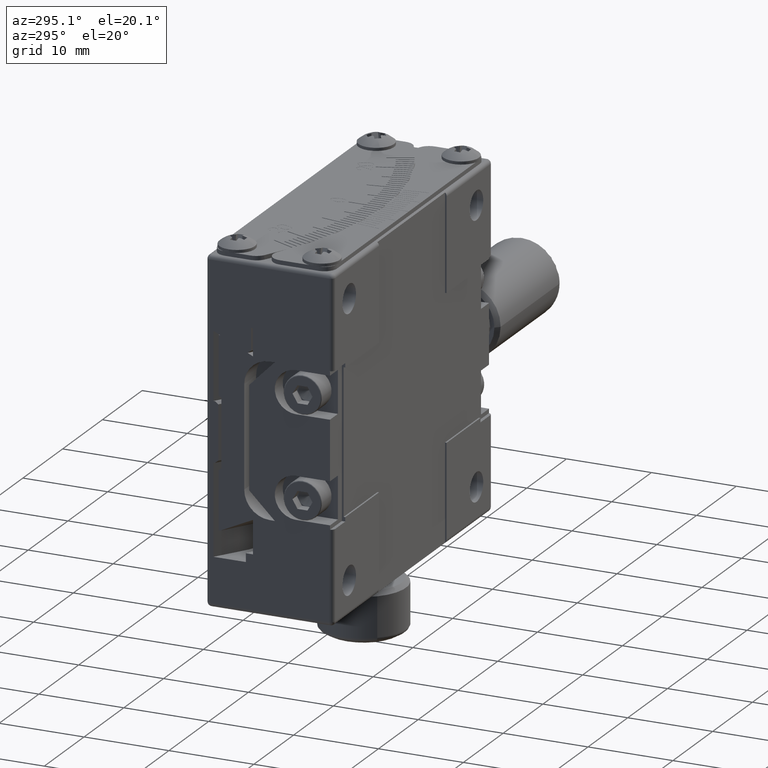
[diagram: clean part render]
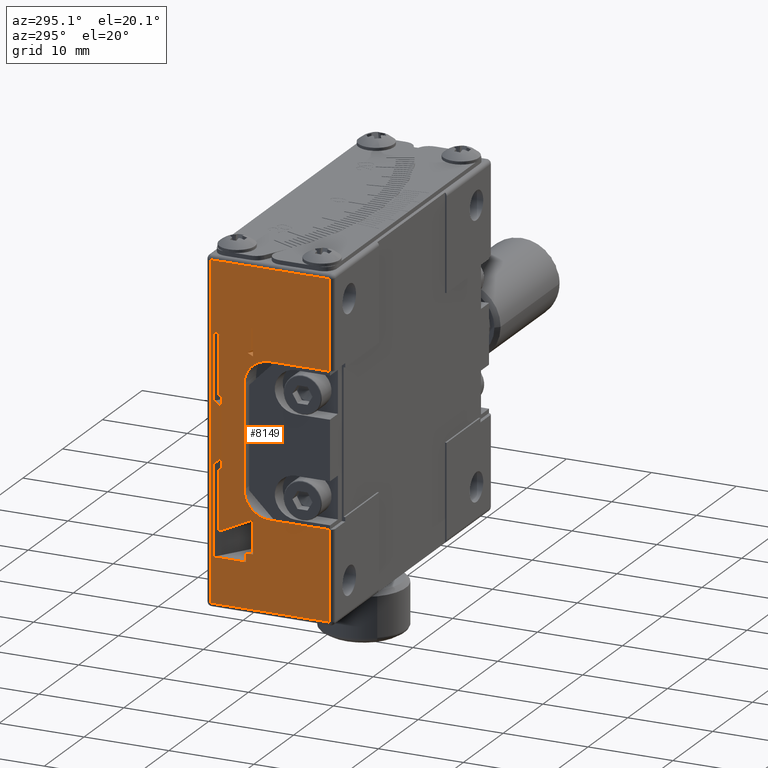
[diagram: same view with one face highlighted and labeled with its STEP entity id]
A machine part, auxiliary view. The second image highlights one B-rep face of the part: STEP entity #8149.
In plain terms, the highlighted planar face has unit normal (1, -0, 0).
Its self-contained STEP definition (entity closure, byte-faithful):
#68 = CARTESIAN_POINT ( 'NONE',  ( -20.00000000000000000, 15.00000000000000000, 3.500000000000000000 ) ) ;
#288 = DIRECTION ( 'NONE',  ( -1.254144814433826071E-15, -1.000000000000000000, 0.000000000000000000 ) ) ;
#293 = CIRCLE ( 'NONE', #1688, 3.000000000000000888 ) ;
#451 = DIRECTION ( 'NONE',  ( 1.254144814433826071E-15, 1.000000000000000000, 0.000000000000000000 ) ) ;
#580 = LINE ( 'NONE', #9838, #18164 ) ;
#593 = DIRECTION ( 'NONE',  ( 1.000000000000000000, 0.000000000000000000, 0.000000000000000000 ) ) ;
#776 = ORIENTED_EDGE ( 'NONE', *, *, #20348, .T. ) ;
#816 = VECTOR ( 'NONE', #10349, 1000.000000000000000 ) ;
#849 = LINE ( 'NONE', #25230, #18651 ) ;
#1038 = VERTEX_POINT ( 'NONE', #3870 ) ;
#1199 = VERTEX_POINT ( 'NONE', #1634 ) ;
#1237 = LINE ( 'NONE', #8130, #8167 ) ;
#1302 = CARTESIAN_POINT ( 'NONE',  ( -20.00000000000000000, 9.467230718455970973, 20.00000000000000000 ) ) ;
#1438 = EDGE_CURVE ( 'NONE', #13898, #17682, #580, .T. ) ;
#1448 = ORIENTED_EDGE ( 'NONE', *, *, #15769, .T. ) ;
#1468 = VECTOR ( 'NONE', #10566, 1000.000000000000000 ) ;
#1525 = DIRECTION ( 'NONE',  ( 1.000000000000000000, 0.000000000000000000, 0.000000000000000000 ) ) ;
#1633 = VECTOR ( 'NONE', #17537, 1000.000000000000000 ) ;
#1634 = CARTESIAN_POINT ( 'NONE',  ( -20.00000000000000000, 13.56285756742988013, 3.200000000000000178 ) ) ;
#1684 = VERTEX_POINT ( 'NONE', #4390 ) ;
#1688 = AXIS2_PLACEMENT_3D ( 'NONE', #13275, #593, #28997 ) ;
#1768 = ORIENTED_EDGE ( 'NONE', *, *, #17179, .T. ) ;
#1773 = CARTESIAN_POINT ( 'NONE',  ( -20.00000000000000000, 9.467230718455970973, 12.50000000000000000 ) ) ;
#1814 = DIRECTION ( 'NONE',  ( 1.254144814433826071E-15, 1.000000000000000000, 0.000000000000000000 ) ) ;
#1922 = VERTEX_POINT ( 'NONE', #11852 ) ;
#1960 = CARTESIAN_POINT ( 'NONE',  ( -20.00000000000000000, 13.94002110515052095, -3.500000000000000000 ) ) ;
#2102 = EDGE_CURVE ( 'NONE', #3546, #25067, #10137, .T. ) ;
#2133 = VECTOR ( 'NONE', #5649, 1000.000000000000000 ) ;
#2366 = VERTEX_POINT ( 'NONE', #16907 ) ;
#2391 = VERTEX_POINT ( 'NONE', #8687 ) ;
#2405 = VECTOR ( 'NONE', #12629, 1000.000000000000000 ) ;
#2555 = ORIENTED_EDGE ( 'NONE', *, *, #12958, .T. ) ;
#2684 = VERTEX_POINT ( 'NONE', #24826 ) ;
#2864 = CARTESIAN_POINT ( 'NONE',  ( -20.00000000000000355, 13.60359750041203064, 11.22326829616293864 ) ) ;
#2909 = LINE ( 'NONE', #27442, #27234 ) ;
#2923 = VERTEX_POINT ( 'NONE', #24796 ) ;
#2982 = LINE ( 'NONE', #15913, #26635 ) ;
#3009 = DIRECTION ( 'NONE',  ( 0.000000000000000000, -1.000000000000000000, 0.000000000000000000 ) ) ;
#3070 = ORIENTED_EDGE ( 'NONE', *, *, #4199, .T. ) ;
#3430 = EDGE_CURVE ( 'NONE', #26954, #7807, #21636, .T. ) ;
#3521 = B_SPLINE_CURVE_WITH_KNOTS ( 'NONE', 3,
 ( #12193, #5599, #14541, #25696 ),
 .UNSPECIFIED., .F., .F.,
 ( 4, 4 ),
 ( 0.000000000000000000, 0.1656765929956161287 ),
 .UNSPECIFIED. ) ;
#3546 = VERTEX_POINT ( 'NONE', #3740 ) ;
#3578 = VERTEX_POINT ( 'NONE', #19295 ) ;
#3619 = ORIENTED_EDGE ( 'NONE', *, *, #4912, .T. ) ;
#3653 = ORIENTED_EDGE ( 'NONE', *, *, #4686, .T. ) ;
#3687 = EDGE_CURVE ( 'NONE', #24534, #26146, #293, .T. ) ;
#3740 = CARTESIAN_POINT ( 'NONE',  ( -20.00000000000000000, 7.500000000000000000, -9.000000000000000000 ) ) ;
#3870 = CARTESIAN_POINT ( 'NONE',  ( -20.00000000000000000, 13.94002110515052095, -3.500000000000000000 ) ) ;
#3962 = CARTESIAN_POINT ( 'NONE',  ( -20.00000000000000000, 10.30757672401930058, -9.270170592217178651 ) ) ;
#4030 = VERTEX_POINT ( 'NONE', #19217 ) ;
#4199 = EDGE_CURVE ( 'NONE', #26146, #5664, #11130, .T. ) ;
#4390 = CARTESIAN_POINT ( 'NONE',  ( -20.00000000000000000, 14.50000000000000000, 19.50000000000000000 ) ) ;
#4532 = CARTESIAN_POINT ( 'NONE',  ( -20.00000000000000000, 9.467230718455960314, 9.281898384862241613 ) ) ;
#4537 = ORIENTED_EDGE ( 'NONE', *, *, #28343, .F. ) ;
#4686 = EDGE_CURVE ( 'NONE', #22340, #20641, #18424, .T. ) ;
#4749 = EDGE_CURVE ( 'NONE', #8413, #15895, #27972, .T. ) ;
#4755 = FACE_BOUND ( 'NONE', #9117, .T. ) ;
#4847 = DIRECTION ( 'NONE',  ( 3.081487911019574628E-32, 1.000000000000000000, -2.775557561562889810E-17 ) ) ;
#4870 = EDGE_CURVE ( 'NONE', #2366, #2684, #19876, .T. ) ;
#4912 = EDGE_CURVE ( 'NONE', #1038, #3578, #18406, .T. ) ;
#4919 = CARTESIAN_POINT ( 'NONE',  ( -20.00000000000000000, 14.12936027076252010, 20.00000000000000000 ) ) ;
#4947 = CARTESIAN_POINT ( 'NONE',  ( -20.00000781619930734, 13.33670633181368892, 11.09999950978186511 ) ) ;
#5110 = CARTESIAN_POINT ( 'NONE',  ( -20.00000000000000000, 0.5000000000000000000, 20.00000000000000000 ) ) ;
#5251 = DIRECTION ( 'NONE',  ( 0.000000000000000000, 0.000000000000000000, 1.000000000000000000 ) ) ;
#5270 = DIRECTION ( 'NONE',  ( 0.000000000000000000, 0.000000000000000000, -1.000000000000000000 ) ) ;
#5356 = CARTESIAN_POINT ( 'NONE',  ( -20.00000781619930734, 13.33670633181368892, 11.09999950978186511 ) ) ;
#5367 = CARTESIAN_POINT ( 'NONE',  ( -20.00000000000000000, 0.000000000000000000, -11.09999999999999964 ) ) ;
#5444 = ORIENTED_EDGE ( 'NONE', *, *, #11119, .T. ) ;
#5554 = CARTESIAN_POINT ( 'NONE',  ( -20.00000000000000000, 10.50000000000000000, 6.000000000000000000 ) ) ;
#5599 = CARTESIAN_POINT ( 'NONE',  ( -20.00000000000000711, 9.689092553986817791, 9.389049157238456900 ) ) ;
#5649 = DIRECTION ( 'NONE',  ( 0.000000000000000000, 0.000000000000000000, -1.000000000000000000 ) ) ;
#5664 = VERTEX_POINT ( 'NONE', #23132 ) ;
#5735 = CARTESIAN_POINT ( 'NONE',  ( -20.00000000000000000, 9.706601379178339428, 9.900000000000000355 ) ) ;
#5894 = CARTESIAN_POINT ( 'NONE',  ( -20.00000000000000000, 13.94002110515054049, 3.500000000000000000 ) ) ;
#5914 = VECTOR ( 'NONE', #5251, 1000.000000000000000 ) ;
#6089 = DIRECTION ( 'NONE',  ( 0.000000000000000000, 0.000000000000000000, -1.000000000000000000 ) ) ;
#6106 = CARTESIAN_POINT ( 'NONE',  ( -20.00000000000000000, 10.50000000000000000, -6.000000000000000000 ) ) ;
#6348 = VERTEX_POINT ( 'NONE', #20710 ) ;
#6403 = LINE ( 'NONE', #8584, #1633 ) ;
#6420 = EDGE_CURVE ( 'NONE', #21521, #14537, #7070, .T. ) ;
#6584 = CARTESIAN_POINT ( 'NONE',  ( -20.00000000000000000, 13.39579923935301942, 4.166677481327050181 ) ) ;
#6731 = CARTESIAN_POINT ( 'NONE',  ( -20.00000000000000000, 15.00000000000000000, 19.50000000000000000 ) ) ;
#6910 = CARTESIAN_POINT ( 'NONE',  ( -20.00000000000000000, 13.39579923935301942, -4.166677481327055510 ) ) ;
#7070 = LINE ( 'NONE', #24973, #22186 ) ;
#7291 = CARTESIAN_POINT ( 'NONE',  ( -20.00000000000000000, 14.12936027076252010, 11.46410161513773929 ) ) ;
#7587 = VERTEX_POINT ( 'NONE', #8020 ) ;
#7606 = CARTESIAN_POINT ( 'NONE',  ( -20.00000000000000000, 14.50000000000000000, -19.50000000000000000 ) ) ;
#7682 = DIRECTION ( 'NONE',  ( -1.254144814433826071E-15, -1.000000000000000000, 0.000000000000000000 ) ) ;
#7807 = VERTEX_POINT ( 'NONE', #5356 ) ;
#7931 = CARTESIAN_POINT ( 'NONE',  ( -20.00000000000000000, 10.06674090580848002, 9.599999999999999645 ) ) ;
#7939 = EDGE_CURVE ( 'NONE', #25067, #24534, #1237, .T. ) ;
#8020 = CARTESIAN_POINT ( 'NONE',  ( -20.00000000000000000, 13.18764277427290033, -4.000000000000000000 ) ) ;
#8130 = CARTESIAN_POINT ( 'NONE',  ( -20.00000000000000000, 10.50000000000000000, 6.000000000000000000 ) ) ;
#8149 = ADVANCED_FACE ( 'NONE', ( #4755, #16040, #18536 ), #11923, .F. ) ;
#8167 = VECTOR ( 'NONE', #28104, 1000.000000000000000 ) ;
#8184 = ORIENTED_EDGE ( 'NONE', *, *, #13932, .T. ) ;
#8342 = EDGE_CURVE ( 'NONE', #1684, #19621, #8678, .T. ) ;
#8413 = VERTEX_POINT ( 'NONE', #1773 ) ;
#8427 = CARTESIAN_POINT ( 'NONE',  ( -20.00000000000000000, 7.500000000000000000, -6.000000000000000000 ) ) ;
#8480 = CARTESIAN_POINT ( 'NONE',  ( -20.00000000000000000, 13.29168090078704090, 4.083393345685884412 ) ) ;
#8534 = ORIENTED_EDGE ( 'NONE', *, *, #11620, .T. ) ;
#8584 = CARTESIAN_POINT ( 'NONE',  ( -20.00000000000000000, 0.5000000000000000000, 20.00000000000000000 ) ) ;
#8659 = LINE ( 'NONE', #3962, #21313 ) ;
#8678 = LINE ( 'NONE', #13079, #19202 ) ;
#8687 = CARTESIAN_POINT ( 'NONE',  ( -20.00000000000000000, 13.50000000000000000, 11.09999999999999964 ) ) ;
#8822 = CARTESIAN_POINT ( 'NONE',  ( -20.00000000000000711, 10.12805847827576500, 9.599999999999999645 ) ) ;
#9081 = DIRECTION ( 'NONE',  ( 0.000000000000000000, -1.000000000000000000, 0.000000000000000000 ) ) ;
#9117 = EDGE_LOOP ( 'NONE', ( #776, #8534, #12116, #5444, #11306, #21747 ) ) ;
#9140 = DIRECTION ( 'NONE',  ( 0.000000000000000000, 1.000000000000000000, 0.000000000000000000 ) ) ;
#9241 = LINE ( 'NONE', #18329, #15974 ) ;
#9548 = DIRECTION ( 'NONE',  ( 0.000000000000000000, 1.000000000000000000, 0.000000000000000000 ) ) ;
#9648 = VERTEX_POINT ( 'NONE', #23340 ) ;
#9708 = ORIENTED_EDGE ( 'NONE', *, *, #1438, .T. ) ;
#9734 = ORIENTED_EDGE ( 'NONE', *, *, #15813, .T. ) ;
#9753 = CARTESIAN_POINT ( 'NONE',  ( -20.00000000000000000, 9.706601379178339428, 12.50000000000000000 ) ) ;
#9818 = B_SPLINE_CURVE_WITH_KNOTS ( 'NONE', 3,
 ( #27185, #19376, #14840, #5894 ),
 .UNSPECIFIED., .F., .F.,
 ( 4, 4 ),
 ( 2.168404344971010024E-18, 0.0004819256521352330400 ),
 .UNSPECIFIED. ) ;
#9838 = CARTESIAN_POINT ( 'NONE',  ( -20.00000000000000000, 6.938893903907229955E-15, -9.000000000000000000 ) ) ;
#9852 = VERTEX_POINT ( 'NONE', #11709 ) ;
#10137 = CIRCLE ( 'NONE', #13440, 3.000000000000000888 ) ;
#10295 = CARTESIAN_POINT ( 'NONE',  ( -20.00000000000000000, 14.12936027076252010, 3.500000000000000000 ) ) ;
#10349 = DIRECTION ( 'NONE',  ( 0.000000000000000000, 0.000000000000000000, 1.000000000000000000 ) ) ;
#10398 = LINE ( 'NONE', #12162, #11954 ) ;
#10566 = DIRECTION ( 'NONE',  ( 0.000000000000000000, 0.000000000000000000, 1.000000000000000000 ) ) ;
#11075 = CARTESIAN_POINT ( 'NONE',  ( -20.00000000000000000, 13.56285756742988013, -3.200000000000000178 ) ) ;
#11119 = EDGE_CURVE ( 'NONE', #19245, #26188, #19017, .T. ) ;
#11130 = LINE ( 'NONE', #26848, #14816 ) ;
#11159 = CARTESIAN_POINT ( 'NONE',  ( -20.00000000000000000, 13.29168090078706044, -4.083393345685884412 ) ) ;
#11227 = LINE ( 'NONE', #68, #25888 ) ;
#11306 = ORIENTED_EDGE ( 'NONE', *, *, #11495, .T. ) ;
#11444 = CARTESIAN_POINT ( 'NONE',  ( -20.00000000000000000, 13.31130873600656095, -11.09999999999999964 ) ) ;
#11495 = EDGE_CURVE ( 'NONE', #26188, #8413, #2982, .T. ) ;
#11620 = EDGE_CURVE ( 'NONE', #23449, #14642, #12803, .T. ) ;
#11709 = CARTESIAN_POINT ( 'NONE',  ( -20.00000000000000000, 14.12936027076252010, -3.500000000000000000 ) ) ;
#11852 = CARTESIAN_POINT ( 'NONE',  ( -20.00000000000000000, 13.50000000000000000, 4.249849397931940054 ) ) ;
#11880 = EDGE_CURVE ( 'NONE', #2923, #7587, #23492, .T. ) ;
#11923 = PLANE ( 'NONE',  #19683 ) ;
#11944 = CARTESIAN_POINT ( 'NONE',  ( -20.00000000000000000, 0.5000000000000000000, 9.000000000000000000 ) ) ;
#11947 = EDGE_CURVE ( 'NONE', #14642, #19245, #21781, .T. ) ;
#11954 = VECTOR ( 'NONE', #23327, 1000.000000000000000 ) ;
#12065 = EDGE_CURVE ( 'NONE', #14537, #9852, #15550, .T. ) ;
#12104 = ORIENTED_EDGE ( 'NONE', *, *, #27032, .T. ) ;
#12116 = ORIENTED_EDGE ( 'NONE', *, *, #11947, .T. ) ;
#12162 = CARTESIAN_POINT ( 'NONE',  ( -20.00000000000000000, 13.56285756742988013, 20.00000000000000000 ) ) ;
#12193 = CARTESIAN_POINT ( 'NONE',  ( -20.00000000000000000, 9.467230718455960314, 9.281898384862241613 ) ) ;
#12500 = CARTESIAN_POINT ( 'NONE',  ( -20.00000000000000000, 13.50000000000000000, -11.09999999999999964 ) ) ;
#12537 = VERTEX_POINT ( 'NONE', #11944 ) ;
#12629 = DIRECTION ( 'NONE',  ( 0.000000000000000000, 0.000000000000000000, -1.000000000000000000 ) ) ;
#12747 = DIRECTION ( 'NONE',  ( 0.000000000000000000, 0.000000000000000000, -1.000000000000000000 ) ) ;
#12803 = LINE ( 'NONE', #27789, #14111 ) ;
#12958 = EDGE_CURVE ( 'NONE', #1199, #4030, #9818, .T. ) ;
#12990 = EDGE_CURVE ( 'NONE', #20641, #25140, #26989, .T. ) ;
#13079 = CARTESIAN_POINT ( 'NONE',  ( -20.00000000000000000, 14.50000000000000000, 20.00000000000000000 ) ) ;
#13123 = CARTESIAN_POINT ( 'NONE',  ( -20.00000000000000000, 13.68845078837681939, -3.300160659750829950 ) ) ;
#13137 = CARTESIAN_POINT ( 'NONE',  ( -20.00000000000000000, 9.467230718455960314, -9.281898384862241613 ) ) ;
#13162 = EDGE_CURVE ( 'NONE', #9648, #22340, #2909, .T. ) ;
#13197 = EDGE_CURVE ( 'NONE', #19621, #6348, #9241, .T. ) ;
#13275 = CARTESIAN_POINT ( 'NONE',  ( -20.00000000000000000, 7.500000000000000000, 6.000000000000000000 ) ) ;
#13364 = CARTESIAN_POINT ( 'NONE',  ( -20.00000000000000711, 10.80635673209114778, -9.928644979772352386 ) ) ;
#13440 = AXIS2_PLACEMENT_3D ( 'NONE', #8427, #1525, #6089 ) ;
#13477 = DIRECTION ( 'NONE',  ( 1.254144814433826071E-15, 1.000000000000000000, 0.000000000000000000 ) ) ;
#13522 = ORIENTED_EDGE ( 'NONE', *, *, #7939, .T. ) ;
#13867 = DIRECTION ( 'NONE',  ( 0.000000000000000000, 0.000000000000000000, 1.000000000000000000 ) ) ;
#13875 = VECTOR ( 'NONE', #19149, 1000.000000000000000 ) ;
#13898 = VERTEX_POINT ( 'NONE', #21300 ) ;
#13932 = EDGE_CURVE ( 'NONE', #9852, #1038, #25845, .T. ) ;
#13987 = DIRECTION ( 'NONE',  ( -1.254144814433826071E-15, -1.000000000000000000, 0.000000000000000000 ) ) ;
#14111 = VECTOR ( 'NONE', #7682, 1000.000000000000000 ) ;
#14252 = EDGE_CURVE ( 'NONE', #7807, #2391, #15450, .T. ) ;
#14310 = ORIENTED_EDGE ( 'NONE', *, *, #13162, .T. ) ;
#14397 = CARTESIAN_POINT ( 'NONE',  ( -20.00000000000000000, 13.31130873600656095, -11.09999999999999964 ) ) ;
#14537 = VERTEX_POINT ( 'NONE', #29078 ) ;
#14541 = CARTESIAN_POINT ( 'NONE',  ( -20.00000000000000711, 9.909368767467404027, 9.495082416926921454 ) ) ;
#14642 = VERTEX_POINT ( 'NONE', #15712 ) ;
#14816 = VECTOR ( 'NONE', #9081, 1000.000000000000000 ) ;
#14836 = CARTESIAN_POINT ( 'NONE',  ( -20.00000000000000000, 9.946602746527558381, 9.699892406912629994 ) ) ;
#14840 = CARTESIAN_POINT ( 'NONE',  ( -20.00000000000000000, 13.81417074365489839, 3.400162625129814931 ) ) ;
#14858 = ORIENTED_EDGE ( 'NONE', *, *, #3687, .T. ) ;
#15329 = CARTESIAN_POINT ( 'NONE',  ( -20.00000000000000000, 13.81417074365489839, -3.400162625129825145 ) ) ;
#15450 = LINE ( 'NONE', #19854, #21637 ) ;
#15526 = CARTESIAN_POINT ( 'NONE',  ( -20.00000000000000000, 13.18764277427290033, 4.000000000000000000 ) ) ;
#15550 = LINE ( 'NONE', #24074, #1468 ) ;
#15566 = CARTESIAN_POINT ( 'NONE',  ( -20.00000000000000000, 13.18764277427290033, -4.000000000000000000 ) ) ;
#15712 = CARTESIAN_POINT ( 'NONE',  ( -20.00000000000000000, 10.06674090580848002, 9.599999999999999645 ) ) ;
#15769 = EDGE_CURVE ( 'NONE', #3578, #1199, #10398, .T. ) ;
#15813 = EDGE_CURVE ( 'NONE', #25140, #2366, #21268, .T. ) ;
#15854 = CARTESIAN_POINT ( 'NONE',  ( -20.00000000000000000, 13.50000000000000000, -4.249849397931940054 ) ) ;
#15895 = VERTEX_POINT ( 'NONE', #4532 ) ;
#15913 = CARTESIAN_POINT ( 'NONE',  ( -20.00000000000000000, 15.00000000000000000, 12.50000000000000000 ) ) ;
#15974 = VECTOR ( 'NONE', #288, 1000.000000000000000 ) ;
#16040 = FACE_BOUND ( 'NONE', #26260, .T. ) ;
#16047 = ORIENTED_EDGE ( 'NONE', *, *, #8342, .T. ) ;
#16218 = VECTOR ( 'NONE', #1814, 1000.000000000000000 ) ;
#16350 = CARTESIAN_POINT ( 'NONE',  ( -20.00000000000000000, 7.500000000000000000, 9.000000000000000000 ) ) ;
#16553 = EDGE_CURVE ( 'NONE', #2391, #1922, #21197, .T. ) ;
#16879 = CARTESIAN_POINT ( 'NONE',  ( -20.00000000000000000, 9.826556687535498824, 9.799893829951869861 ) ) ;
#16907 = CARTESIAN_POINT ( 'NONE',  ( -20.00000000000000000, 9.467230718455960314, -13.19999999999999929 ) ) ;
#17119 = EDGE_CURVE ( 'NONE', #6348, #13898, #25347, .T. ) ;
#17179 = EDGE_CURVE ( 'NONE', #17682, #3546, #28145, .T. ) ;
#17245 = CARTESIAN_POINT ( 'NONE',  ( -20.00000000000000000, 10.30757672401930058, -14.20000000000000107 ) ) ;
#17269 = ORIENTED_EDGE ( 'NONE', *, *, #25052, .T. ) ;
#17323 = VECTOR ( 'NONE', #13477, 1000.000000000000000 ) ;
#17457 = CARTESIAN_POINT ( 'NONE',  ( -20.00000000000000000, 9.467230718455960314, -9.281898384862241613 ) ) ;
#17537 = DIRECTION ( 'NONE',  ( 0.000000000000000000, 0.000000000000000000, 1.000000000000000000 ) ) ;
#17613 = CARTESIAN_POINT ( 'NONE',  ( -20.00000000000000355, 12.08771607127468073, -10.53467885148493544 ) ) ;
#17682 = VERTEX_POINT ( 'NONE', #19583 ) ;
#17714 = ORIENTED_EDGE ( 'NONE', *, *, #2102, .T. ) ;
#17872 = LINE ( 'NONE', #6731, #17323 ) ;
#18164 = VECTOR ( 'NONE', #9548, 1000.000000000000000 ) ;
#18175 = ORIENTED_EDGE ( 'NONE', *, *, #22639, .T. ) ;
#18329 = CARTESIAN_POINT ( 'NONE',  ( -20.00000000000000000, 15.00000000000000000, -19.50000000000000000 ) ) ;
#18406 = B_SPLINE_CURVE_WITH_KNOTS ( 'NONE', 3,
 ( #1960, #15329, #13123, #11075 ),
 .UNSPECIFIED., .F., .F.,
 ( 4, 4 ),
 ( 4.336808689942014847E-19, 0.0004819256521352279984 ),
 .UNSPECIFIED. ) ;
#18424 = LINE ( 'NONE', #5367, #25559 ) ;
#18536 = FACE_OUTER_BOUND ( 'NONE', #21433, .T. ) ;
#18651 = VECTOR ( 'NONE', #4847, 1000.000000000000000 ) ;
#18838 = EDGE_CURVE ( 'NONE', #4030, #23306, #11227, .T. ) ;
#18913 = EDGE_CURVE ( 'NONE', #23306, #26954, #25018, .T. ) ;
#19017 = LINE ( 'NONE', #27979, #816 ) ;
#19149 = DIRECTION ( 'NONE',  ( 0.000000000000000000, 0.000000000000000000, -1.000000000000000000 ) ) ;
#19202 = VECTOR ( 'NONE', #24099, 1000.000000000000000 ) ;
#19217 = CARTESIAN_POINT ( 'NONE',  ( -20.00000000000000000, 13.94002110515054049, 3.500000000000000000 ) ) ;
#19245 = VERTEX_POINT ( 'NONE', #25405 ) ;
#19282 = CARTESIAN_POINT ( 'NONE',  ( -20.00000000000000000, 13.50000000000000000, 20.00000000000000000 ) ) ;
#19295 = CARTESIAN_POINT ( 'NONE',  ( -20.00000000000000000, 13.56285756742988013, -3.200000000000000178 ) ) ;
#19321 = DIRECTION ( 'NONE',  ( 0.000000000000000000, 1.000000000000000000, 0.000000000000000000 ) ) ;
#19376 = CARTESIAN_POINT ( 'NONE',  ( -20.00000000000000000, 13.68845078837681939, 3.300160659750819736 ) ) ;
#19583 = CARTESIAN_POINT ( 'NONE',  ( -20.00000000000000000, 6.899999999999999467, -9.000000000000000000 ) ) ;
#19621 = VERTEX_POINT ( 'NONE', #7606 ) ;
#19683 = AXIS2_PLACEMENT_3D ( 'NONE', #25146, #27499, #13987 ) ;
#19854 = CARTESIAN_POINT ( 'NONE',  ( -20.00000000000000000, 0.000000000000000000, 11.09999999999999964 ) ) ;
#19876 = LINE ( 'NONE', #24426, #16218 ) ;
#19982 = ORIENTED_EDGE ( 'NONE', *, *, #4870, .T. ) ;
#20090 = ORIENTED_EDGE ( 'NONE', *, *, #17119, .T. ) ;
#20348 = EDGE_CURVE ( 'NONE', #15895, #23449, #3521, .T. ) ;
#20641 = VERTEX_POINT ( 'NONE', #11444 ) ;
#20710 = CARTESIAN_POINT ( 'NONE',  ( -20.00000000000000000, 0.5000000000000000000, -19.50000000000000000 ) ) ;
#20738 = VECTOR ( 'NONE', #13867, 1000.000000000000000 ) ;
#20897 = DIRECTION ( 'NONE',  ( -1.254144814433826071E-15, -1.000000000000000000, 0.000000000000000000 ) ) ;
#21197 = LINE ( 'NONE', #19282, #2133 ) ;
#21268 = LINE ( 'NONE', #1302, #21344 ) ;
#21300 = CARTESIAN_POINT ( 'NONE',  ( -20.00000000000000000, 0.5000000000000000000, -9.000000000000000000 ) ) ;
#21313 = VECTOR ( 'NONE', #24362, 1000.000000000000000 ) ;
#21344 = VECTOR ( 'NONE', #12747, 1000.000000000000000 ) ;
#21433 = EDGE_LOOP ( 'NONE', ( #17269, #12104, #16047, #26596, #20090, #9708, #1768, #17714, #13522, #14858, #3070, #4537 ) ) ;
#21521 = VERTEX_POINT ( 'NONE', #17245 ) ;
#21579 = CARTESIAN_POINT ( 'NONE',  ( -20.00000000000000000, 13.18764277427290033, 20.00000000000000000 ) ) ;
#21587 = DIRECTION ( 'NONE',  ( -1.254144814433826071E-15, -1.000000000000000000, 0.000000000000000000 ) ) ;
#21636 = B_SPLINE_CURVE_WITH_KNOTS ( 'NONE', 3,
 ( #7291, #25047, #2864, #4947 ),
 .UNSPECIFIED., .F., .F.,
 ( 4, 4 ),
 ( 0.000000000000000000, 0.2070407334306433589 ),
 .UNSPECIFIED. ) ;
#21637 = VECTOR ( 'NONE', #9140, 1000.000000000000000 ) ;
#21747 = ORIENTED_EDGE ( 'NONE', *, *, #4749, .T. ) ;
#21749 = ORIENTED_EDGE ( 'NONE', *, *, #6420, .T. ) ;
#21753 = ORIENTED_EDGE ( 'NONE', *, *, #16553, .T. ) ;
#21770 = CARTESIAN_POINT ( 'NONE',  ( -20.00000000000000000, 0.5000000000000000000, 19.50000000000000000 ) ) ;
#21781 = B_SPLINE_CURVE_WITH_KNOTS ( 'NONE', 3,
 ( #7931, #14836, #16879, #5735 ),
 .UNSPECIFIED., .F., .F.,
 ( 4, 4 ),
 ( 0.009977611100322331117, 0.01044619737345696062 ),
 .UNSPECIFIED. ) ;
#22186 = VECTOR ( 'NONE', #451, 1000.000000000000000 ) ;
#22285 = CARTESIAN_POINT ( 'NONE',  ( -20.00000000000000000, 13.50000000000000000, 4.249849397931940054 ) ) ;
#22340 = VERTEX_POINT ( 'NONE', #12500 ) ;
#22432 = EDGE_CURVE ( 'NONE', #7587, #9648, #24144, .T. ) ;
#22639 = EDGE_CURVE ( 'NONE', #1922, #2923, #22692, .T. ) ;
#22692 = B_SPLINE_CURVE_WITH_KNOTS ( 'NONE', 3,
 ( #22285, #6584, #8480, #15526 ),
 .UNSPECIFIED., .F., .F.,
 ( 4, 4 ),
 ( 0.01190371708360456020, 0.01230336769500106099 ),
 .UNSPECIFIED. ) ;
#23050 = ORIENTED_EDGE ( 'NONE', *, *, #18838, .T. ) ;
#23132 = CARTESIAN_POINT ( 'NONE',  ( -20.00000000000000000, 6.899999999999999467, 9.000000000000000000 ) ) ;
#23199 = ORIENTED_EDGE ( 'NONE', *, *, #3430, .T. ) ;
#23306 = VERTEX_POINT ( 'NONE', #10295 ) ;
#23327 = DIRECTION ( 'NONE',  ( 0.000000000000000000, 0.000000000000000000, 1.000000000000000000 ) ) ;
#23340 = CARTESIAN_POINT ( 'NONE',  ( -20.00000000000000000, 13.50000000000000000, -4.249849397931940054 ) ) ;
#23449 = VERTEX_POINT ( 'NONE', #8822 ) ;
#23492 = LINE ( 'NONE', #21579, #2405 ) ;
#23502 = VECTOR ( 'NONE', #21587, 1000.000000000000000 ) ;
#23714 = CARTESIAN_POINT ( 'NONE',  ( -20.00000000000000000, 9.467230718455970973, 20.00000000000000000 ) ) ;
#23746 = CARTESIAN_POINT ( 'NONE',  ( -20.00000000000000000, 6.938893903907229955E-15, -9.000000000000000000 ) ) ;
#23940 = CARTESIAN_POINT ( 'NONE',  ( -20.00000000000000000, 15.00000000000000000, -3.500000000000000000 ) ) ;
#24051 = CARTESIAN_POINT ( 'NONE',  ( -20.00000000000000000, 14.12936027076252010, 11.46410161513773929 ) ) ;
#24074 = CARTESIAN_POINT ( 'NONE',  ( -20.00000000000000000, 14.12936027076252010, 20.00000000000000000 ) ) ;
#24099 = DIRECTION ( 'NONE',  ( 0.000000000000000000, 0.000000000000000000, -1.000000000000000000 ) ) ;
#24144 = B_SPLINE_CURVE_WITH_KNOTS ( 'NONE', 3,
 ( #15566, #11159, #6910, #15854 ),
 .UNSPECIFIED., .F., .F.,
 ( 4, 4 ),
 ( 0.01287786482707715952, 0.01327777818930929964 ),
 .UNSPECIFIED. ) ;
#24290 = ORIENTED_EDGE ( 'NONE', *, *, #12990, .T. ) ;
#24318 = EDGE_CURVE ( 'NONE', #2684, #21521, #8659, .T. ) ;
#24362 = DIRECTION ( 'NONE',  ( 0.000000000000000000, 0.000000000000000000, -1.000000000000000000 ) ) ;
#24426 = CARTESIAN_POINT ( 'NONE',  ( -20.00000000000000000, 15.00000000000000000, -13.19999999999999929 ) ) ;
#24534 = VERTEX_POINT ( 'NONE', #5554 ) ;
#24796 = CARTESIAN_POINT ( 'NONE',  ( -20.00000000000000000, 13.18764277427290033, 4.000000000000000000 ) ) ;
#24826 = CARTESIAN_POINT ( 'NONE',  ( -20.00000000000000000, 10.30757672401930058, -13.19999999999999929 ) ) ;
#24973 = CARTESIAN_POINT ( 'NONE',  ( -20.00000000000000000, 15.00000000000000000, -14.20000000000000107 ) ) ;
#25018 = LINE ( 'NONE', #4919, #20738 ) ;
#25047 = CARTESIAN_POINT ( 'NONE',  ( -20.00000000000000000, 13.86781555562296830, 11.34463550117988540 ) ) ;
#25052 = EDGE_CURVE ( 'NONE', #12537, #25403, #6403, .T. ) ;
#25067 = VERTEX_POINT ( 'NONE', #6106 ) ;
#25140 = VERTEX_POINT ( 'NONE', #13137 ) ;
#25146 = CARTESIAN_POINT ( 'NONE',  ( -20.00000000000000000, 15.00000000000000000, 20.00000000000000000 ) ) ;
#25230 = CARTESIAN_POINT ( 'NONE',  ( -20.00000000000000000, 0.4000000000000065170, 9.000000000000000000 ) ) ;
#25259 = ORIENTED_EDGE ( 'NONE', *, *, #24318, .T. ) ;
#25347 = LINE ( 'NONE', #5110, #5914 ) ;
#25403 = VERTEX_POINT ( 'NONE', #21770 ) ;
#25405 = CARTESIAN_POINT ( 'NONE',  ( -20.00000000000000000, 9.706601379178339428, 9.900000000000000355 ) ) ;
#25559 = VECTOR ( 'NONE', #3009, 1000.000000000000000 ) ;
#25696 = CARTESIAN_POINT ( 'NONE',  ( -20.00000000000000711, 10.12805847827576500, 9.599999999999999645 ) ) ;
#25845 = LINE ( 'NONE', #23940, #23502 ) ;
#25888 = VECTOR ( 'NONE', #26940, 1000.000000000000000 ) ;
#26065 = ORIENTED_EDGE ( 'NONE', *, *, #18913, .T. ) ;
#26146 = VERTEX_POINT ( 'NONE', #16350 ) ;
#26188 = VERTEX_POINT ( 'NONE', #9753 ) ;
#26260 = EDGE_LOOP ( 'NONE', ( #23199, #27658, #21753, #18175, #27304, #28329, #14310, #3653, #24290, #9734, #19982, #25259, #21749, #27662, #8184, #3619, #1448, #2555, #23050, #26065 ) ) ;
#26596 = ORIENTED_EDGE ( 'NONE', *, *, #13197, .T. ) ;
#26635 = VECTOR ( 'NONE', #20897, 1000.000000000000000 ) ;
#26848 = CARTESIAN_POINT ( 'NONE',  ( -20.00000000000000000, 6.938893903907229955E-15, 9.000000000000000000 ) ) ;
#26940 = DIRECTION ( 'NONE',  ( 1.254144814433826071E-15, 1.000000000000000000, 0.000000000000000000 ) ) ;
#26954 = VERTEX_POINT ( 'NONE', #24051 ) ;
#26989 = B_SPLINE_CURVE_WITH_KNOTS ( 'NONE', 3,
 ( #14397, #17613, #13364, #17457 ),
 .UNSPECIFIED., .F., .F.,
 ( 4, 4 ),
 ( 0.000000000000000000, 1.000000000000000000 ),
 .UNSPECIFIED. ) ;
#27032 = EDGE_CURVE ( 'NONE', #25403, #1684, #17872, .T. ) ;
#27185 = CARTESIAN_POINT ( 'NONE',  ( -20.00000000000000000, 13.56285756742988013, 3.200000000000000178 ) ) ;
#27234 = VECTOR ( 'NONE', #5270, 1000.000000000000000 ) ;
#27304 = ORIENTED_EDGE ( 'NONE', *, *, #11880, .T. ) ;
#27405 = VECTOR ( 'NONE', #19321, 1000.000000000000000 ) ;
#27442 = CARTESIAN_POINT ( 'NONE',  ( -20.00000000000000000, 13.50000000000000000, 20.00000000000000000 ) ) ;
#27499 = DIRECTION ( 'NONE',  ( 1.000000000000000000, -1.254144814433826071E-15, 0.000000000000000000 ) ) ;
#27658 = ORIENTED_EDGE ( 'NONE', *, *, #14252, .T. ) ;
#27662 = ORIENTED_EDGE ( 'NONE', *, *, #12065, .T. ) ;
#27789 = CARTESIAN_POINT ( 'NONE',  ( -20.00000000000000000, 15.00000000000000000, 9.599999999999999645 ) ) ;
#27972 = LINE ( 'NONE', #23714, #13875 ) ;
#27979 = CARTESIAN_POINT ( 'NONE',  ( -20.00000000000000000, 9.706601379178339428, -9.270170592217178651 ) ) ;
#28104 = DIRECTION ( 'NONE',  ( 0.000000000000000000, 0.000000000000000000, 1.000000000000000000 ) ) ;
#28145 = LINE ( 'NONE', #23746, #27405 ) ;
#28329 = ORIENTED_EDGE ( 'NONE', *, *, #22432, .T. ) ;
#28343 = EDGE_CURVE ( 'NONE', #12537, #5664, #849, .T. ) ;
#28997 = DIRECTION ( 'NONE',  ( 0.000000000000000000, 0.000000000000000000, 1.000000000000000000 ) ) ;
#29078 = CARTESIAN_POINT ( 'NONE',  ( -20.00000000000000000, 14.12936027076252010, -14.20000000000000107 ) ) ;